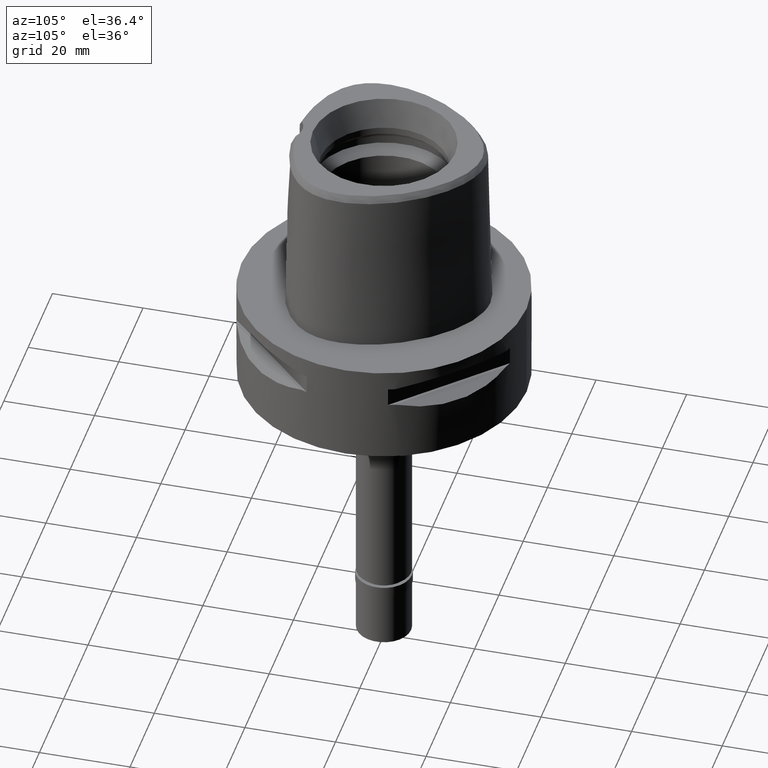
[diagram: clean part render]
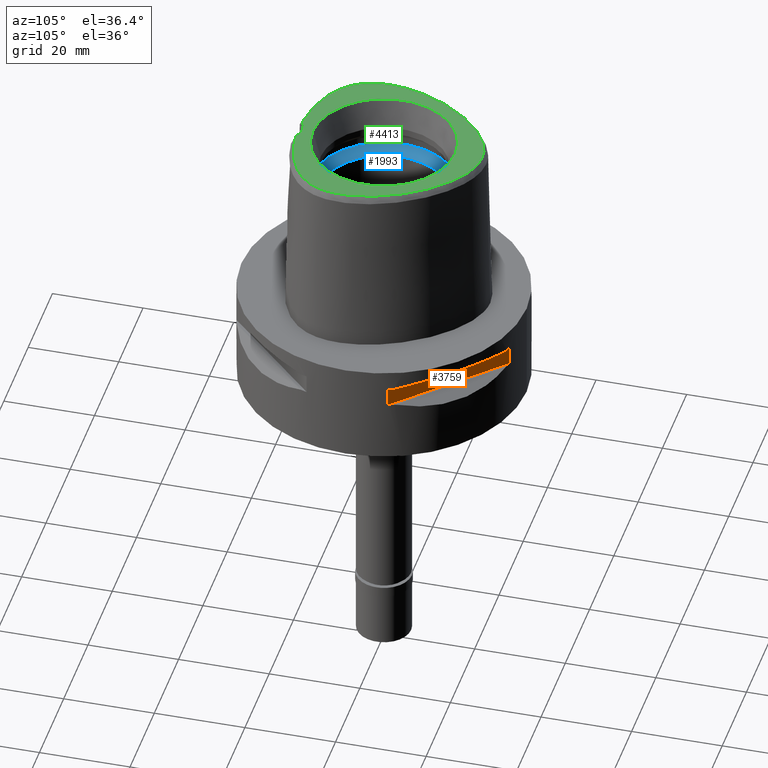
[diagram: same view with three faces highlighted in distinct colors, each labeled with its STEP entity id]
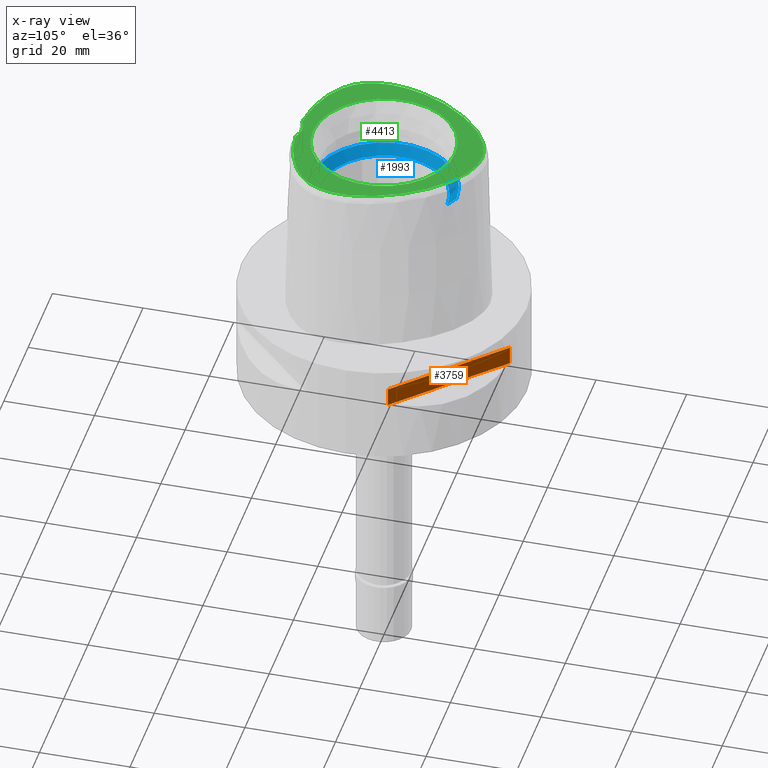
[diagram: x-ray of the same camera — body ghosted, the three highlighted faces saturated]
A machine part, auxiliary view with three faces highlighted in distinct colors.
The next image is the same camera in x-ray (body ghosted, the three faces saturated) — at least one of them is partly hidden behind the body in this view.
Their STEP definitions:

[orange] entity #3759 — the highlighted planar face has unit normal (-0.7071, -0.7071, 0).
#125 = CARTESIAN_POINT ( 'NONE',  ( 7.212489168103000559, 31.96122650962999856, -4.226544721229000601 ) ) ;
#198 = ORIENTED_EDGE ( 'NONE', *, *, #1450, .F. ) ;
#360 = EDGE_CURVE ( 'NONE', #3348, #911, #1545, .T. ) ;
#711 = ORIENTED_EDGE ( 'NONE', *, *, #3021, .T. ) ;
#755 = DIRECTION ( 'NONE',  ( -0.7071067811865474617, 0.7071067811865474617, 0.0000000000000000000 ) ) ;
#763 = CARTESIAN_POINT ( 'NONE',  ( 30.19251670572000279, 8.981198972019999616, -4.226544721229000601 ) ) ;
#853 = VECTOR ( 'NONE', #755, 1000.000000000000114 ) ;
#911 = VERTEX_POINT ( 'NONE', #1146 ) ;
#982 = CARTESIAN_POINT ( 'NONE',  ( 8.981198972016999349, 30.19251670572000279, -4.226544721229000601 ) ) ;
#1066 = LINE ( 'NONE', #2251, #1170 ) ;
#1146 = CARTESIAN_POINT ( 'NONE',  ( 8.981198972019999616, 30.19251670572000279, -8.326544721229000245 ) ) ;
#1170 = VECTOR ( 'NONE', #2567, 1000.000000000000114 ) ;
#1374 = ORIENTED_EDGE ( 'NONE', *, *, #360, .T. ) ;
#1450 = EDGE_CURVE ( 'NONE', #3788, #3051, #1066, .T. ) ;
#1545 = LINE ( 'NONE', #4600, #853 ) ;
#2031 = DIRECTION ( 'NONE',  ( -0.7071067811865475727, 0.7071067811865475727, 0.0000000000000000000 ) ) ;
#2251 = CARTESIAN_POINT ( 'NONE',  ( 30.19251670572000279, 8.981198972016999349, -4.226544721229000601 ) ) ;
#2257 = ORIENTED_EDGE ( 'NONE', *, *, #3930, .T. ) ;
#2342 = LINE ( 'NONE', #3495, #4671 ) ;
#2567 = DIRECTION ( 'NONE',  ( -0.7071067811865474617, 0.7071067811865474617, 0.0000000000000000000 ) ) ;
#3021 = EDGE_CURVE ( 'NONE', #911, #3051, #2342, .T. ) ;
#3051 = VERTEX_POINT ( 'NONE', #982 ) ;
#3248 = EDGE_LOOP ( 'NONE', ( #198, #2257, #1374, #711 ) ) ;
#3332 = AXIS2_PLACEMENT_3D ( 'NONE', #125, #3925, #2031 ) ;
#3348 = VERTEX_POINT ( 'NONE', #4717 ) ;
#3495 = CARTESIAN_POINT ( 'NONE',  ( 8.981198972016999349, 30.19251670572000279, -8.326544721229000245 ) ) ;
#3529 = PLANE ( 'NONE',  #3332 ) ;
#3625 = FACE_OUTER_BOUND ( 'NONE', #3248, .T. ) ;
#3759 = ADVANCED_FACE ( 'NONE', ( #3625 ), #3529, .F. ) ;
#3788 = VERTEX_POINT ( 'NONE', #763 ) ;
#3925 = DIRECTION ( 'NONE',  ( -0.7071067811865475727, -0.7071067811865475727, 0.0000000000000000000 ) ) ;
#3930 = EDGE_CURVE ( 'NONE', #3788, #3348, #4262, .T. ) ;
#4218 = CARTESIAN_POINT ( 'NONE',  ( 30.19251670572000279, 8.981198972016999349, -4.226544721229000601 ) ) ;
#4262 = LINE ( 'NONE', #4218, #4594 ) ;
#4594 = VECTOR ( 'NONE', #4614, 1000.000000000000000 ) ;
#4600 = CARTESIAN_POINT ( 'NONE',  ( 30.19251670572000279, 8.981198972016999349, -8.326544721229000245 ) ) ;
#4614 = DIRECTION ( 'NONE',  ( 0.0000000000000000000, 0.0000000000000000000, -1.000000000000000000 ) ) ;
#4635 = DIRECTION ( 'NONE',  ( 0.0000000000000000000, 0.0000000000000000000, 1.000000000000000000 ) ) ;
#4671 = VECTOR ( 'NONE', #4635, 1000.000000000000000 ) ;
#4717 = CARTESIAN_POINT ( 'NONE',  ( 30.19251670572000279, 8.981198972016999349, -8.326544721229000245 ) ) ;

[blue] entity #1993 — the highlighted conical surface has half-angle 45 deg.
#63 = VECTOR ( 'NONE', #2846, 1000.000000000000114 ) ;
#267 = ORIENTED_EDGE ( 'NONE', *, *, #381, .F. ) ;
#343 = ORIENTED_EDGE ( 'NONE', *, *, #3948, .F. ) ;
#381 = EDGE_CURVE ( 'NONE', #2695, #1332, #1243, .T. ) ;
#856 = CARTESIAN_POINT ( 'NONE',  ( 0.0000000000000000000, -14.00000000000000000, 24.19999999999999929 ) ) ;
#1152 = DIRECTION ( 'NONE',  ( 0.0000000000000000000, 0.0000000000000000000, -1.000000000000000000 ) ) ;
#1243 = CIRCLE ( 'NONE', #4420, 16.00000000000000000 ) ;
#1332 = VERTEX_POINT ( 'NONE', #1833 ) ;
#1335 = CARTESIAN_POINT ( 'NONE',  ( 0.0000000000000000000, 14.00000000000000000, 24.19999999999999929 ) ) ;
#1369 = CARTESIAN_POINT ( 'NONE',  ( 0.0000000000000000000, 0.0000000000000000000, 25.19999999999999929 ) ) ;
#1639 = CIRCLE ( 'NONE', #4431, 14.00000000000000000 ) ;
#1650 = ORIENTED_EDGE ( 'NONE', *, *, #2403, .T. ) ;
#1684 = VERTEX_POINT ( 'NONE', #4189 ) ;
#1717 = CONICAL_SURFACE ( 'NONE', #4660, 15.00000000000000000, 0.7853981633972997312 ) ;
#1833 = CARTESIAN_POINT ( 'NONE',  ( 0.0000000000000000000, 16.00000000000000000, 26.20000000000000284 ) ) ;
#1885 = DIRECTION ( 'NONE',  ( 0.0000000000000000000, 0.0000000000000000000, 1.000000000000000000 ) ) ;
#1993 = ADVANCED_FACE ( 'NONE', ( #4773 ), #1717, .F. ) ;
#2109 = EDGE_CURVE ( 'NONE', #2353, #1684, #1639, .T. ) ;
#2353 = VERTEX_POINT ( 'NONE', #4715 ) ;
#2403 = EDGE_CURVE ( 'NONE', #2353, #1332, #4738, .T. ) ;
#2529 = DIRECTION ( 'NONE',  ( 0.0000000000000000000, 1.000000000000000000, 0.0000000000000000000 ) ) ;
#2649 = ORIENTED_EDGE ( 'NONE', *, *, #2109, .F. ) ;
#2695 = VERTEX_POINT ( 'NONE', #3887 ) ;
#2846 = DIRECTION ( 'NONE',  ( 0.0000000000000000000, 0.7071067811865474617, 0.7071067811865474617 ) ) ;
#3163 = VECTOR ( 'NONE', #3888, 1000.000000000000114 ) ;
#3466 = LINE ( 'NONE', #856, #3163 ) ;
#3732 = CARTESIAN_POINT ( 'NONE',  ( 0.0000000000000000000, 0.0000000000000000000, 24.19999999999999929 ) ) ;
#3887 = CARTESIAN_POINT ( 'NONE',  ( 0.0000000000000000000, -16.00000000000000000, 26.20000000000000284 ) ) ;
#3888 = DIRECTION ( 'NONE',  ( 0.0000000000000000000, -0.7071067811865474617, 0.7071067811865474617 ) ) ;
#3948 = EDGE_CURVE ( 'NONE', #1684, #2695, #3466, .T. ) ;
#4189 = CARTESIAN_POINT ( 'NONE',  ( 0.0000000000000000000, -14.00000000000000000, 24.19999999999999929 ) ) ;
#4199 = DIRECTION ( 'NONE',  ( 0.0000000000000000000, 1.000000000000000000, 0.0000000000000000000 ) ) ;
#4228 = DIRECTION ( 'NONE',  ( 0.0000000000000000000, -1.000000000000000000, 0.0000000000000000000 ) ) ;
#4400 = DIRECTION ( 'NONE',  ( 0.0000000000000000000, 0.0000000000000000000, 1.000000000000000000 ) ) ;
#4420 = AXIS2_PLACEMENT_3D ( 'NONE', #4556, #1152, #4228 ) ;
#4431 = AXIS2_PLACEMENT_3D ( 'NONE', #3732, #1885, #4199 ) ;
#4556 = CARTESIAN_POINT ( 'NONE',  ( 0.0000000000000000000, 0.0000000000000000000, 26.20000000000000284 ) ) ;
#4646 = EDGE_LOOP ( 'NONE', ( #2649, #1650, #267, #343 ) ) ;
#4660 = AXIS2_PLACEMENT_3D ( 'NONE', #1369, #4400, #2529 ) ;
#4715 = CARTESIAN_POINT ( 'NONE',  ( 0.0000000000000000000, 14.00000000000000000, 24.19999999999999929 ) ) ;
#4738 = LINE ( 'NONE', #1335, #63 ) ;
#4773 = FACE_OUTER_BOUND ( 'NONE', #4646, .T. ) ;

[green] entity #4413 — the highlighted planar face has unit normal (0, 0, 1).
#152 = CARTESIAN_POINT ( 'NONE',  ( -15.71788912669310534, -14.29843101565933949, 37.99999999999152323 ) ) ;
#178 = CARTESIAN_POINT ( 'NONE',  ( -11.31790883121226798, -16.80796958614038772, 37.99999999999536726 ) ) ;
#187 = DIRECTION ( 'NONE',  ( 0.0000000000000000000, 1.000000000000000000, 0.0000000000000000000 ) ) ;
#200 = CARTESIAN_POINT ( 'NONE',  ( -10.48962422760007485, 16.86631853279082449, 37.99999999999962341 ) ) ;
#206 = CARTESIAN_POINT ( 'NONE',  ( 14.34383722811658224, 12.54786717290767584, 37.99999999999447198 ) ) ;
#209 = DIRECTION ( 'NONE',  ( 0.0000000000000000000, 0.0000000000000000000, 1.000000000000000000 ) ) ;
#252 = CARTESIAN_POINT ( 'NONE',  ( -0.6498990081536148988, 21.67378274708397967, 37.99999999999037215 ) ) ;
#310 = CARTESIAN_POINT ( 'NONE',  ( 14.21382211799543249, -15.34284287400556579, 37.99999999999774047 ) ) ;
#313 = PLANE ( 'NONE',  #2055 ) ;
#361 = CARTESIAN_POINT ( 'NONE',  ( 2.845098933833399180, -18.76733062685926612, 37.99999999999623412 ) ) ;
#384 = CARTESIAN_POINT ( 'NONE',  ( 17.91165267838956510, -12.13575389397516702, 37.99999999999877076 ) ) ;
#410 = EDGE_CURVE ( 'NONE', #569, #3330, #4894, .T. ) ;
#452 = CARTESIAN_POINT ( 'NONE',  ( -12.37132652997974525, -16.34104299088316381, 37.99999999999624123 ) ) ;
#503 = CARTESIAN_POINT ( 'NONE',  ( -18.99520880204681816, -10.46968343926616996, 37.99999999999982236 ) ) ;
#569 = VERTEX_POINT ( 'NONE', #2903 ) ;
#579 = CARTESIAN_POINT ( 'NONE',  ( -7.655222869373096373, 19.09452359226218121, 37.99999999999149480 ) ) ;
#585 = CARTESIAN_POINT ( 'NONE',  ( -3.470663397174999625E-11, 21.68728795390000030, 38.00000000000000000 ) ) ;
#587 = CARTESIAN_POINT ( 'NONE',  ( 0.0000000000000000000, -23.00000000000000000, 38.00000000000000000 ) ) ;
#608 = CARTESIAN_POINT ( 'NONE',  ( 10.48999540691425914, 16.86597469870252297, 37.99999999999648281 ) ) ;
#625 = CARTESIAN_POINT ( 'NONE',  ( -16.88647904405539890, 8.517821442303842971, 37.99999999999828759 ) ) ;
#635 = CARTESIAN_POINT ( 'NONE',  ( 17.60373714028570191, 7.099883643192829830, 37.99999999999627676 ) ) ;
#674 = CARTESIAN_POINT ( 'NONE',  ( -20.30498420086959754, -2.177378896257928798, 38.00000000000153477 ) ) ;
#680 = CARTESIAN_POINT ( 'NONE',  ( 8.936919536467451408, -17.64796721715415728, 37.99999999999392486 ) ) ;
#706 = CARTESIAN_POINT ( 'NONE',  ( 6.196495988003482225, -18.31673538865334194, 37.99999999999906919 ) ) ;
#737 = CARTESIAN_POINT ( 'NONE',  ( 4.715576077241800057, -18.56597918135391012, 37.99999999998885869 ) ) ;
#786 = CIRCLE ( 'NONE', #3876, 15.71487483155999776 ) ;
#874 = CARTESIAN_POINT ( 'NONE',  ( -16.36032397154023954, -13.76458520345547143, 37.99999999999751310 ) ) ;
#899 = CARTESIAN_POINT ( 'NONE',  ( -18.31748213707672690, -11.58791794387622076, 37.99999999999644018 ) ) ;
#927 = CARTESIAN_POINT ( 'NONE',  ( 19.98468477322826686, -7.807876343103914429, 37.99999999999636913 ) ) ;
#949 = CARTESIAN_POINT ( 'NONE',  ( -15.24692477332810547, 11.25717358966726422, 37.99999999999951683 ) ) ;
#974 = CARTESIAN_POINT ( 'NONE',  ( -20.38301517462857859, -3.278344853327475938, 37.99999999999635492 ) ) ;
#980 = CARTESIAN_POINT ( 'NONE',  ( 2.018320379028669009, 21.50256508436079628, 38.00000000000088107 ) ) ;
#985 = EDGE_LOOP ( 'NONE', ( #2737, #3591 ) ) ;
#1002 = CARTESIAN_POINT ( 'NONE',  ( 4.255661039972727266, 20.86618068829700690, 37.99999999999252509 ) ) ;
#1051 = CARTESIAN_POINT ( 'NONE',  ( -4.254559144978625085, 20.86660163697690962, 37.99999999999225508 ) ) ;
#1080 = CARTESIAN_POINT ( 'NONE',  ( 12.37622418509702626, -16.33871033285740992, 37.99999999999209876 ) ) ;
#1133 = CARTESIAN_POINT ( 'NONE',  ( 18.31883910943629346, -11.58595831187969694, 37.99999999999354827 ) ) ;
#1154 = CARTESIAN_POINT ( 'NONE',  ( 15.72078707640507389, -14.29615620309170332, 37.99999999999743494 ) ) ;
#1198 = CARTESIAN_POINT ( 'NONE',  ( -2.682279906006999948, -18.78035848609999903, 38.00000000000000000 ) ) ;
#1219 = CARTESIAN_POINT ( 'NONE',  ( -13.33457781970217582, -15.85148397417890642, 37.99999999999765521 ) ) ;
#1267 = CARTESIAN_POINT ( 'NONE',  ( -8.930096025510739111, -17.65000298921757960, 38.00000000000150635 ) ) ;
#1299 = CARTESIAN_POINT ( 'NONE',  ( 20.40062138794953839, -4.309334958867803600, 37.99999999999641886 ) ) ;
#1379 = CARTESIAN_POINT ( 'NONE',  ( 0.0000000000000000000, 0.0000000000000000000, 38.00000000000000000 ) ) ;
#1402 = CARTESIAN_POINT ( 'NONE',  ( 16.88599964843080414, 8.518708218770077778, 37.99999999999590727 ) ) ;
#1422 = CARTESIAN_POINT ( 'NONE',  ( -20.40060226222999518, -4.311417605381541840, 38.00000000000011369 ) ) ;
#1478 = FACE_BOUND ( 'NONE', #985, .T. ) ;
#1486 = CARTESIAN_POINT ( 'NONE',  ( -3.470663397174999625E-11, 21.68728795390000030, 38.00000000000000000 ) ) ;
#1530 = DIRECTION ( 'NONE',  ( 0.0000000000000000000, 0.0000000000000000000, 1.000000000000000000 ) ) ;
#1632 = B_SPLINE_CURVE_WITH_KNOTS ( 'NONE', 3,
 ( #1198, #2425, #2331, #4229, #4626, #4324, #1267, #2750, #178, #452, #1219, #4280, #4252, #152, #874, #2778, #3582, #3084, #899, #3903, #503, #2008, #3528, #1662, #3182, #4700, #2704, #2133, #1422, #974, #674, #4027, #4056, #3205, #3679, #3308, #2186, #4822, #625, #4377, #949, #1708, #3982, #1735, #1760, #200, #3282, #3702, #579, #2553, #2105, #3651, #1051, #4350, #2823, #3228, #2935, #252, #2479, #1687 ),
 .UNSPECIFIED., .F., .F.,
 ( 4, 1, 1, 1, 1, 1, 1, 1, 1, 1, 1, 1, 1, 1, 1, 1, 1, 1, 1, 1, 1, 1, 1, 1, 1, 1, 1, 1, 1, 1, 1, 1, 1, 1, 1, 1, 1, 1, 1, 1, 1, 1, 1, 1, 1, 1, 1, 1, 1, 1, 1, 1, 1, 1, 1, 1, 1, 4 ),
 ( 0.0000000000000000000, 0.005420919554200098744, 0.02318126027639999531, 0.04094160099879995407, 0.05870194172099996166, 0.07646228244330000035, 0.09422262316550000794, 0.1119829638877999356, 0.1297433046099999432, 0.1475036453321999508, 0.1652639860544999895, 0.1830243267768000281, 0.2007846674991000668, 0.2185450082212999634, 0.2363053489436000021, 0.2540656896658000097, 0.2718260303881000484, 0.2895863711103000560, 0.3073467118325999836, 0.3251070525547999912, 0.3428673932771000299, 0.3606277339994000686, 0.3783880747216000762, 0.3961484154438998928, 0.4139087561661000114, 0.4316690968884000501, 0.4494294376106000577, 0.4671897783328999854, 0.4849501190552000240, 0.5027104597774000316, 0.5204708004996999593, 0.5382311412219000779, 0.5559914819442000056, 0.5737518226664000132, 0.5915121633886999408, 0.6092725041108999484, 0.6270328448331999871, 0.6447931855555000258, 0.6625535262777000334, 0.6803138669999999610, 0.6980742077221999686, 0.7158345484445000073, 0.7335948891667000149, 0.7513552298890000536, 0.7691155706112000612, 0.7868759113336000199, 0.8046362520558000275, 0.8223965927780999552, 0.8401569335002999628, 0.8579172742224999704, 0.8756776149448000091, 0.8934379556670000166, 0.9111982963893099363, 0.9289586371115700070, 0.9467189778338299666, 0.9644793185560800453, 0.9822396592783400049, 1.000000000000000000 ),
 .UNSPECIFIED. ) ;
#1660 = VERTEX_POINT ( 'NONE', #4727 ) ;
#1662 = CARTESIAN_POINT ( 'NONE',  ( -19.78262210840145841, -8.543146992553143804, 37.99999999999985789 ) ) ;
#1669 = CARTESIAN_POINT ( 'NONE',  ( 20.38292172607449615, -3.276278498261294470, 37.99999999999621281 ) ) ;
#1687 = CARTESIAN_POINT ( 'NONE',  ( -3.470663397174999625E-11, 21.68728795390000030, 38.00000000000000000 ) ) ;
#1694 = CARTESIAN_POINT ( 'NONE',  ( 19.26272899268477801, 2.870227893749763393, 37.99999999999918998 ) ) ;
#1708 = CARTESIAN_POINT ( 'NONE',  ( -14.34402387965722347, 12.54761970513117220, 37.99999999999926814 ) ) ;
#1719 = DIRECTION ( 'NONE',  ( 0.0000000000000000000, 1.000000000000000000, 0.0000000000000000000 ) ) ;
#1735 = CARTESIAN_POINT ( 'NONE',  ( -12.44116897271325151, 14.89128547409854164, 37.99999999999415934 ) ) ;
#1750 = ORIENTED_EDGE ( 'NONE', *, *, #3229, .F. ) ;
#1760 = CARTESIAN_POINT ( 'NONE',  ( -11.46564124494416603, 15.92741340513468451, 37.99999999999288747 ) ) ;
#1823 = CARTESIAN_POINT ( 'NONE',  ( 15.00628712263086406, -14.82385870795017624, 37.99999999999131717 ) ) ;
#1830 = VERTEX_POINT ( 'NONE', #4648 ) ;
#1851 = EDGE_CURVE ( 'NONE', #1830, #2753, #1632, .T. ) ;
#1870 = CARTESIAN_POINT ( 'NONE',  ( 18.99619228226276846, -10.46780014453555019, 37.99999999999299405 ) ) ;
#2008 = CARTESIAN_POINT ( 'NONE',  ( -19.28591707037117686, -9.869682450887594882, 37.99999999999295852 ) ) ;
#2035 = CARTESIAN_POINT ( 'NONE',  ( 13.40430406168949418, 13.76274261012867406, 38.00000000000237321 ) ) ;
#2055 = AXIS2_PLACEMENT_3D ( 'NONE', #4116, #1530, #3043 ) ;
#2066 = CARTESIAN_POINT ( 'NONE',  ( 11.46587147800286210, 15.92717600803003286, 37.99999999999710809 ) ) ;
#2089 = CARTESIAN_POINT ( 'NONE',  ( 19.54993126781858237, -9.226212439885761896, 38.00000000000024869 ) ) ;
#2105 = CARTESIAN_POINT ( 'NONE',  ( -5.893543501601998358, 20.13235399352335264, 37.99999999999989342 ) ) ;
#2133 = CARTESIAN_POINT ( 'NONE',  ( -20.36398648679537615, -5.278470727085804448, 37.99999999999683808 ) ) ;
#2144 = CARTESIAN_POINT ( 'NONE',  ( 18.24247239569602286, 5.672548708072492119, 37.99999999999553779 ) ) ;
#2167 = CARTESIAN_POINT ( 'NONE',  ( 13.33890749495912509, -15.84912955619883768, 37.99999999999346301 ) ) ;
#2186 = CARTESIAN_POINT ( 'NONE',  ( -18.24302769442583028, 5.671232572958936125, 37.99999999999315747 ) ) ;
#2247 = CARTESIAN_POINT ( 'NONE',  ( 19.28677546797037579, -9.867757137506345089, 37.99999999999813838 ) ) ;
#2267 = CARTESIAN_POINT ( 'NONE',  ( 10.17751632998041345, -17.24426134458967752, 37.99999999999835154 ) ) ;
#2285 = CARTESIAN_POINT ( 'NONE',  ( 0.0000000000000000000, 0.0000000000000000000, 38.00000000000000000 ) ) ;
#2331 = CARTESIAN_POINT ( 'NONE',  ( -3.522896839654386714, -18.70811514173783507, 37.99999999999571543 ) ) ;
#2398 = CARTESIAN_POINT ( 'NONE',  ( 0.0000000000000000000, 15.71487483155999776, 38.00000000000000000 ) ) ;
#2425 = CARTESIAN_POINT ( 'NONE',  ( -2.841965291530648585, -18.76757795571776555, 37.99999999999938893 ) ) ;
#2433 = CARTESIAN_POINT ( 'NONE',  ( 8.578848111817190869, 18.44609846599220759, 37.99999999999640465 ) ) ;
#2461 = CARTESIAN_POINT ( 'NONE',  ( 3.482188079159944660, 21.13472718027583142, 37.99999999999262457 ) ) ;
#2479 = CARTESIAN_POINT ( 'NONE',  ( -0.2181979014508845793, 21.68728795389269592, 37.99999999999072742 ) ) ;
#2484 = CARTESIAN_POINT ( 'NONE',  ( 6.760281394351210338, 19.65404668909837227, 37.99999999999469225 ) ) ;
#2553 = CARTESIAN_POINT ( 'NONE',  ( -6.759433772717978961, 19.65454812513169713, 37.99999999998910027 ) ) ;
#2678 = DIRECTION ( 'NONE',  ( 0.0000000000000000000, 0.0000000000000000000, 1.000000000000000000 ) ) ;
#2682 = EDGE_LOOP ( 'NONE', ( #4470, #3580, #1750 ) ) ;
#2704 = CARTESIAN_POINT ( 'NONE',  ( -20.27898581532684119, -6.181921586190123996, 37.99999999999310774 ) ) ;
#2737 = ORIENTED_EDGE ( 'NONE', *, *, #3138, .F. ) ;
#2750 = CARTESIAN_POINT ( 'NONE',  ( -10.17136073855287393, -17.24644253470300370, 37.99999999999700151 ) ) ;
#2753 = VERTEX_POINT ( 'NONE', #1486 ) ;
#2778 = CARTESIAN_POINT ( 'NONE',  ( -16.93638123745682478, -13.22593246128733568, 37.99999999999467803 ) ) ;
#2823 = CARTESIAN_POINT ( 'NONE',  ( -2.735698246183325910, 21.34559102902507632, 38.00000000000076028 ) ) ;
#2834 = CARTESIAN_POINT ( 'NONE',  ( 20.30478359881580275, -2.175347700950678309, 37.99999999999710809 ) ) ;
#2839 = DIRECTION ( 'NONE',  ( 0.0000000000000000000, 0.0000000000000000000, 1.000000000000000000 ) ) ;
#2861 = CARTESIAN_POINT ( 'NONE',  ( 0.6513209347955553064, 21.67370899611235657, 37.99999999999604228 ) ) ;
#2903 = CARTESIAN_POINT ( 'NONE',  ( 0.0000000000000000000, -15.71487483155999776, 38.00000000000000000 ) ) ;
#2935 = CARTESIAN_POINT ( 'NONE',  ( -1.323674540694302015, 21.61098849315643022, 37.99999999999819522 ) ) ;
#2944 = CARTESIAN_POINT ( 'NONE',  ( 7.606839420237791138, -18.00827588386101041, 37.99999999999970157 ) ) ;
#3006 = AXIS2_PLACEMENT_3D ( 'NONE', #2285, #2678, #4203 ) ;
#3043 = DIRECTION ( 'NONE',  ( 1.000000000000000000, 0.0000000000000000000, 0.0000000000000000000 ) ) ;
#3084 = CARTESIAN_POINT ( 'NONE',  ( -17.91005512243599185, -12.13778127739821322, 37.99999999999904077 ) ) ;
#3138 = EDGE_CURVE ( 'NONE', #3330, #569, #786, .T. ) ;
#3182 = CARTESIAN_POINT ( 'NONE',  ( -19.98419490692007372, -7.809898894996430307, 37.99999999999962341 ) ) ;
#3187 = CARTESIAN_POINT ( 'NONE',  ( 16.09765529146447349, 9.909410920132922129, 37.99999999998851763 ) ) ;
#3205 = CARTESIAN_POINT ( 'NONE',  ( -19.64434054693644072, 1.520253387636164799, 37.99999999999468514 ) ) ;
#3213 = CARTESIAN_POINT ( 'NONE',  ( 12.44125753246503940, 14.89118158853944429, 37.99999999999700151 ) ) ;
#3228 = CARTESIAN_POINT ( 'NONE',  ( -2.017025177697091998, 21.50280829367959967, 37.99999999999576517 ) ) ;
#3229 = EDGE_CURVE ( 'NONE', #1660, #1830, #3715, .T. ) ;
#3239 = CARTESIAN_POINT ( 'NONE',  ( 1.325020189552978067, 21.61081414408828749, 38.00000000000042633 ) ) ;
#3282 = CARTESIAN_POINT ( 'NONE',  ( -9.524337278002736440, 17.70558492632073211, 37.99999999999255351 ) ) ;
#3308 = CARTESIAN_POINT ( 'NONE',  ( -18.79649882725113486, 4.256255933891768706, 37.99999999999492672 ) ) ;
#3330 = VERTEX_POINT ( 'NONE', #2398 ) ;
#3343 = CARTESIAN_POINT ( 'NONE',  ( 11.32341394162961912, -16.80569392800751061, 37.99999999999295142 ) ) ;
#3369 = CARTESIAN_POINT ( 'NONE',  ( 16.36283630828387103, -13.76236604534778429, 37.99999999999745626 ) ) ;
#3528 = CARTESIAN_POINT ( 'NONE',  ( -19.54919922642120156, -9.228169790569110020, 38.00000000000201794 ) ) ;
#3580 = ORIENTED_EDGE ( 'NONE', *, *, #1851, .F. ) ;
#3582 = CARTESIAN_POINT ( 'NONE',  ( -17.45119705493911155, -12.68365517585899660, 38.00000000000186162 ) ) ;
#3587 = CARTESIAN_POINT ( 'NONE',  ( 20.15127154947789734, -7.022178451341446248, 38.00000000000135003 ) ) ;
#3591 = ORIENTED_EDGE ( 'NONE', *, *, #410, .F. ) ;
#3609 = CARTESIAN_POINT ( 'NONE',  ( 19.94150023627906165, 0.2261566111946391178, 37.99999999999943157 ) ) ;
#3651 = CARTESIAN_POINT ( 'NONE',  ( -5.058220461390257938, 20.53445508814304077, 37.99999999999409539 ) ) ;
#3679 = CARTESIAN_POINT ( 'NONE',  ( -19.26324493739011956, 2.868570891457427496, 38.00000000000031974 ) ) ;
#3702 = CARTESIAN_POINT ( 'NONE',  ( -8.578220530114510467, 18.44656747109464234, 37.99999999999693756 ) ) ;
#3709 = CARTESIAN_POINT ( 'NONE',  ( 18.67722910598558528, -11.03372143227992908, 37.99999999999570832 ) ) ;
#3712 = FACE_OUTER_BOUND ( 'NONE', #2682, .T. ) ;
#3715 = CIRCLE ( 'NONE', #4354, 5.000000000000000888 ) ;
#3762 = CARTESIAN_POINT ( 'NONE',  ( 16.93855157778166998, -13.22377441789625330, 37.99999999999274536 ) ) ;
#3871 = B_SPLINE_CURVE_WITH_KNOTS ( 'NONE', 3,
 ( #585, #4779, #2861, #3239, #980, #4067, #2461, #1002, #4804, #4383, #2484, #4010, #2433, #4037, #608, #2066, #3213, #2035, #206, #4728, #3187, #1402, #635, #2144, #4705, #1694, #4436, #3609, #3959, #2834, #1669, #1299, #4331, #4358, #3587, #927, #3988, #2089, #2247, #1870, #3709, #1133, #384, #4828, #3762, #3369, #1154, #1823, #310, #2167, #1080, #3343, #2267, #680, #2944, #706, #737, #4088, #361, #4560 ),
 .UNSPECIFIED., .F., .F.,
 ( 4, 1, 1, 1, 1, 1, 1, 1, 1, 1, 1, 1, 1, 1, 1, 1, 1, 1, 1, 1, 1, 1, 1, 1, 1, 1, 1, 1, 1, 1, 1, 1, 1, 1, 1, 1, 1, 1, 1, 1, 1, 1, 1, 1, 1, 1, 1, 1, 1, 1, 1, 1, 1, 1, 1, 1, 1, 4 ),
 ( 0.0000000000000000000, 0.01775854187129999318, 0.03551708374169992855, 0.05327562561200005486, 0.07103416748239999023, 0.08879270935270000553, 0.1065512512231000519, 0.1243097930933999562, 0.1420683349638000026, 0.1598268768341000179, 0.1775854187044000332, 0.1953439605747999686, 0.2131025024450999839, 0.2308610443155000302, 0.2486195861857999345, 0.2663781280563000120, 0.2841366699266000273, 0.3018952117970000737, 0.3196537536672999780, 0.3374122955377000244, 0.3551708374080000397, 0.3729293792782999439, 0.3906879211486999903, 0.4084464630190000056, 0.4262050048894000520, 0.4439635467596999563, 0.4617220886301000027, 0.4794806305004000180, 0.4972391723707999533, 0.5149977142410999686, 0.5327562561113999839, 0.5505147979818000303, 0.5682733398521000456, 0.5860318817224999810, 0.6037904235927999963, 0.6215489654632000427, 0.6393075073334999470, 0.6570660492038999934, 0.6748245910742000087, 0.6925831329445000240, 0.7103416748149000703, 0.7281002166851999746, 0.7458587585556000210, 0.7636173004259000363, 0.7813758422962999717, 0.7991343841665999870, 0.8168929260370000334, 0.8346514679073000487, 0.8524100097776999840, 0.8701685516479999993, 0.8879270935183000146, 0.9056856353886799660, 0.9234441772589799813, 0.9412027191293600437, 0.9589612609997000270, 0.9767198028700500023, 0.9944783447403919840, 1.000000000000000000 ),
 .UNSPECIFIED. ) ;
#3876 = AXIS2_PLACEMENT_3D ( 'NONE', #1379, #2839, #187 ) ;
#3903 = CARTESIAN_POINT ( 'NONE',  ( -18.67608643722019934, -11.03561202290957510, 37.99999999999504752 ) ) ;
#3959 = CARTESIAN_POINT ( 'NONE',  ( 20.15982952131994921, -1.007721426051601421, 38.00000000000198952 ) ) ;
#3982 = CARTESIAN_POINT ( 'NONE',  ( -13.40435640711941367, 13.76268382997163897, 37.99999999999577227 ) ) ;
#3988 = CARTESIAN_POINT ( 'NONE',  ( 19.78323211893306066, -8.541156231035683888, 37.99999999999135980 ) ) ;
#4010 = CARTESIAN_POINT ( 'NONE',  ( 7.655962789344027186, 19.09402979099596465, 38.00000000000117240 ) ) ;
#4027 = CARTESIAN_POINT ( 'NONE',  ( -20.16012968311570219, -1.009698174524126912, 37.99999999999856470 ) ) ;
#4037 = CARTESIAN_POINT ( 'NONE',  ( 9.524842839488474766, 17.70516372194451193, 38.00000000000187583 ) ) ;
#4056 = CARTESIAN_POINT ( 'NONE',  ( -19.94188961899451940, 0.2242544969880314876, 37.99999999999766942 ) ) ;
#4067 = CARTESIAN_POINT ( 'NONE',  ( 2.736932690726577633, 21.34527940056999284, 37.99999999999847944 ) ) ;
#4088 = CARTESIAN_POINT ( 'NONE',  ( 3.529311563348659142, -18.70747079910108468, 37.99999999999658229 ) ) ;
#4116 = CARTESIAN_POINT ( 'NONE',  ( 0.0000000000000000000, 0.0000000000000000000, 38.00000000000000000 ) ) ;
#4203 = DIRECTION ( 'NONE',  ( 0.0000000000000000000, -1.000000000000000000, 0.0000000000000000000 ) ) ;
#4229 = CARTESIAN_POINT ( 'NONE',  ( -4.706994425064666032, -18.56721852573081222, 38.00000000000186162 ) ) ;
#4252 = CARTESIAN_POINT ( 'NONE',  ( -15.00295592773658626, -14.82617991125779611, 37.99999999999606359 ) ) ;
#4280 = CARTESIAN_POINT ( 'NONE',  ( -14.21001600787643682, -15.34519100086538579, 37.99999999999469935 ) ) ;
#4324 = CARTESIAN_POINT ( 'NONE',  ( -7.599370508971153626, -18.01010694911619225, 37.99999999999602807 ) ) ;
#4331 = CARTESIAN_POINT ( 'NONE',  ( 20.36412151360978484, -5.276385427453837096, 38.00000000000012790 ) ) ;
#4350 = CARTESIAN_POINT ( 'NONE',  ( -3.481017203589414244, 21.13509756881976642, 37.99999999998989608 ) ) ;
#4354 = AXIS2_PLACEMENT_3D ( 'NONE', #587, #209, #1719 ) ;
#4358 = CARTESIAN_POINT ( 'NONE',  ( 20.27923816685945724, -6.179850483268022998, 38.00000000000232347 ) ) ;
#4377 = CARTESIAN_POINT ( 'NONE',  ( -16.09805956313970654, 9.908742513518054906, 37.99999999999937472 ) ) ;
#4383 = CARTESIAN_POINT ( 'NONE',  ( 5.894487344450181077, 20.13186406532426531, 37.99999999999511147 ) ) ;
#4413 = ADVANCED_FACE ( 'NONE', ( #3712, #1478 ), #313, .T. ) ;
#4436 = CARTESIAN_POINT ( 'NONE',  ( 19.64387775268202319, 1.522048414458240906, 37.99999999999626965 ) ) ;
#4470 = ORIENTED_EDGE ( 'NONE', *, *, #4855, .F. ) ;
#4560 = CARTESIAN_POINT ( 'NONE',  ( 2.682287482605000051, -18.78036330228999873, 38.00000000000000000 ) ) ;
#4626 = CARTESIAN_POINT ( 'NONE',  ( -6.188376196367142867, -18.31830638231387454, 37.99999999999331379 ) ) ;
#4648 = CARTESIAN_POINT ( 'NONE',  ( -2.682279906006999948, -18.78035848609999903, 38.00000000000000000 ) ) ;
#4700 = CARTESIAN_POINT ( 'NONE',  ( -20.15090095364768885, -7.024227649787801120, 37.99999999999792522 ) ) ;
#4705 = CARTESIAN_POINT ( 'NONE',  ( 18.79595068776295719, 4.257753965102448745, 37.99999999999909051 ) ) ;
#4727 = CARTESIAN_POINT ( 'NONE',  ( 2.682287482605000051, -18.78036330228999873, 38.00000000000000000 ) ) ;
#4728 = CARTESIAN_POINT ( 'NONE',  ( 15.24661770199511146, 11.25762885478003028, 37.99999999999418776 ) ) ;
#4779 = CARTESIAN_POINT ( 'NONE',  ( 0.2185816947241123465, 21.68728795389402819, 37.99999999999718625 ) ) ;
#4804 = CARTESIAN_POINT ( 'NONE',  ( 5.059249257021085633, 20.53399274679191322, 37.99999999999050004 ) ) ;
#4822 = CARTESIAN_POINT ( 'NONE',  ( -17.60426951086894931, 7.098774535282587728, 37.99999999999219824 ) ) ;
#4828 = CARTESIAN_POINT ( 'NONE',  ( 17.45306278053165272, -12.68156296993408461, 38.00000000000130740 ) ) ;
#4855 = EDGE_CURVE ( 'NONE', #2753, #1660, #3871, .T. ) ;
#4894 = CIRCLE ( 'NONE', #3006, 15.71487483155999776 ) ;